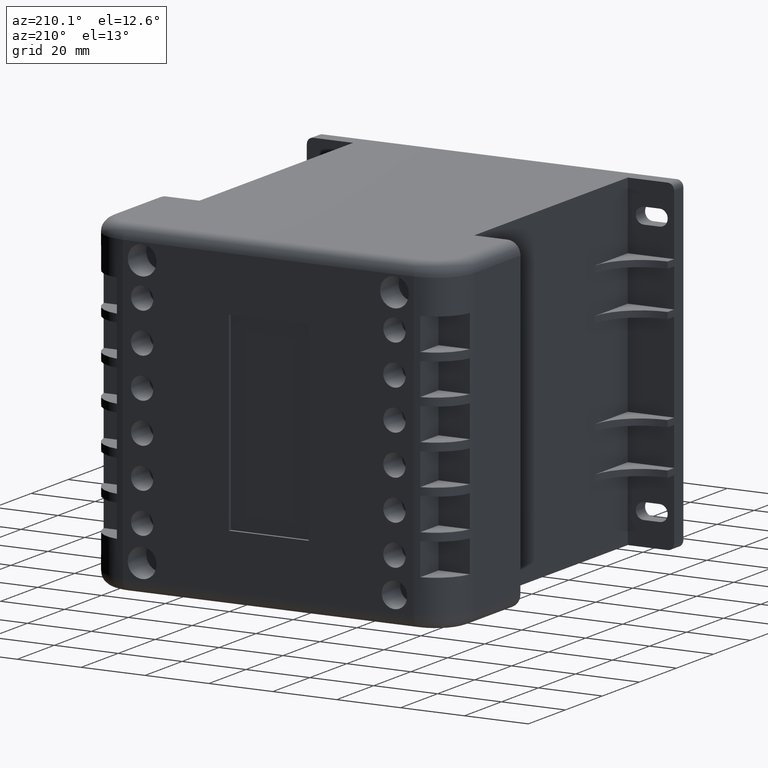
[diagram: clean part render]
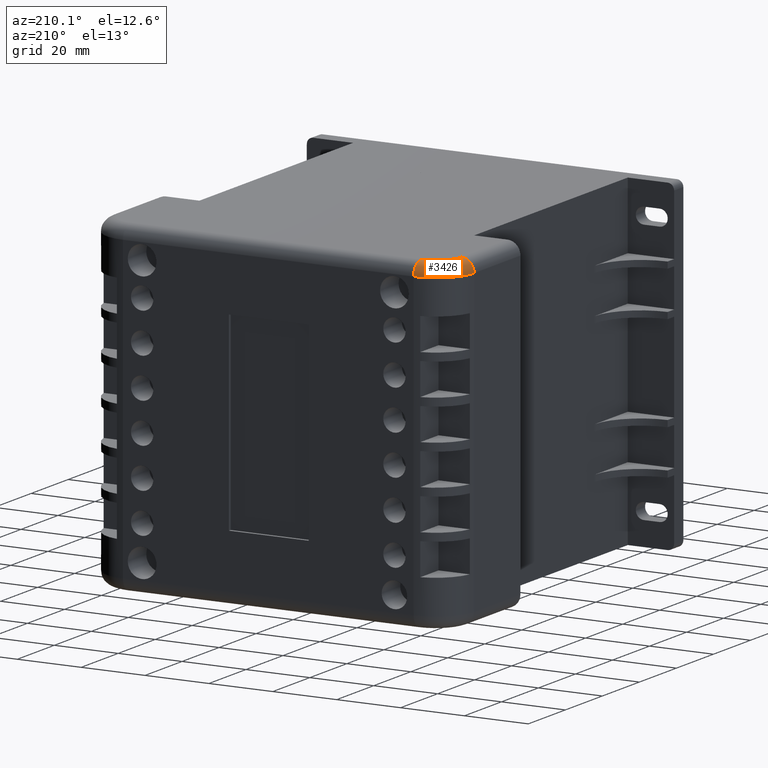
[diagram: same view with one face highlighted and labeled with its STEP entity id]
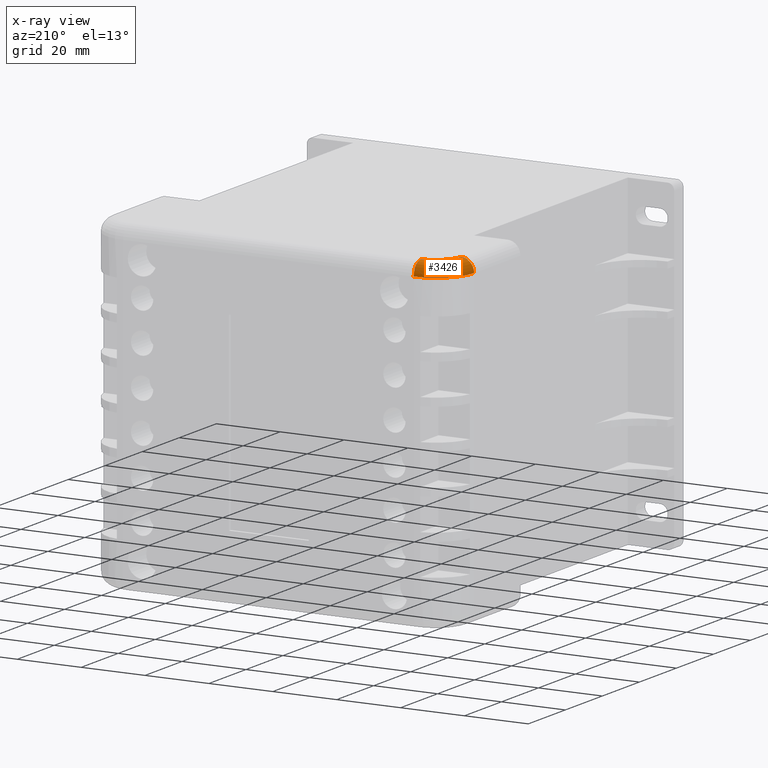
[diagram: x-ray of the same camera — body ghosted, the highlighted face saturated]
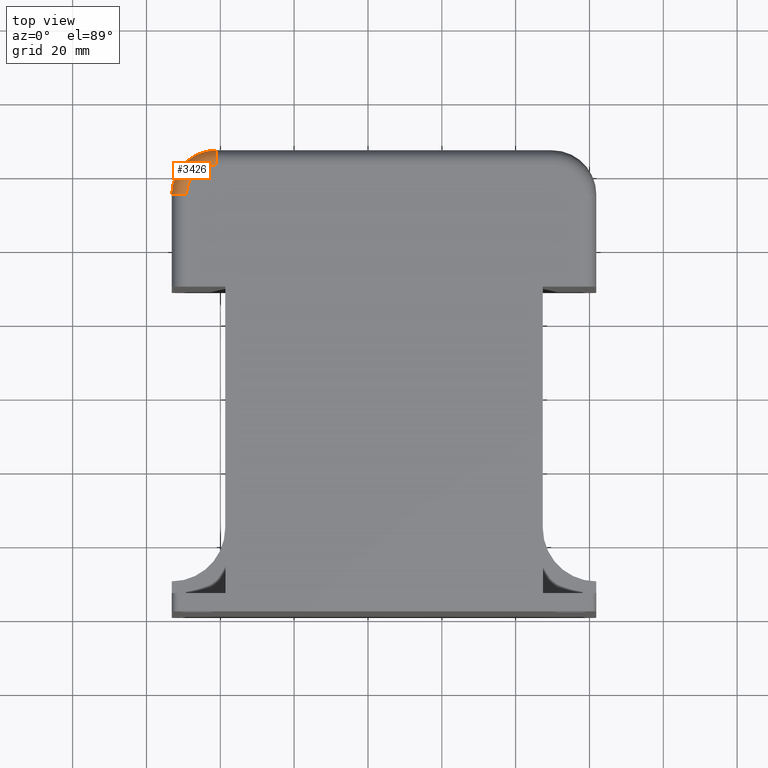
[diagram: same view with one face highlighted and labeled with its STEP entity id]
A machine part, auxiliary view. The second image highlights one B-rep face of the part: STEP entity #3426.
The next image is the same camera in x-ray: the body ghosted, the highlighted face saturated — about 0% of this face is hidden behind the body in this view.
A second angle (top view) of the same face is appended — the face is thin or edge-on in the first view.
In plain terms, the highlighted toroidal blend (fillet) surface has major radius 8 mm and minor (blend) radius 4 mm.
Its self-contained STEP definition (entity closure, byte-faithful):
#25=TOROIDAL_SURFACE('',#3814,8.,4.);
#172=CIRCLE('',#3813,4.);
#173=CIRCLE('',#3815,4.);
#174=CIRCLE('',#3816,12.);
#175=CIRCLE('',#3817,8.);
#387=FACE_OUTER_BOUND('',#598,.T.);
#598=EDGE_LOOP('',(#2642,#2643,#2644,#2645));
#1533=VERTEX_POINT('',#5539);
#1534=VERTEX_POINT('',#5541);
#1535=VERTEX_POINT('',#5545);
#1536=VERTEX_POINT('',#5546);
#1925=EDGE_CURVE('',#1533,#1534,#172,.T.);
#1927=EDGE_CURVE('',#1535,#1536,#173,.T.);
#1928=EDGE_CURVE('',#1536,#1534,#174,.T.);
#1929=EDGE_CURVE('',#1533,#1535,#175,.T.);
#2642=ORIENTED_EDGE('',*,*,#1927,.T.);
#2643=ORIENTED_EDGE('',*,*,#1928,.T.);
#2644=ORIENTED_EDGE('',*,*,#1925,.F.);
#2645=ORIENTED_EDGE('',*,*,#1929,.T.);
#3426=ADVANCED_FACE('',(#387),#25,.T.);
#3813=AXIS2_PLACEMENT_3D('',#5542,#4596,#4597);
#3814=AXIS2_PLACEMENT_3D('',#5544,#4599,#4600);
#3815=AXIS2_PLACEMENT_3D('',#5547,#4601,#4602);
#3816=AXIS2_PLACEMENT_3D('',#5548,#4603,#4604);
#3817=AXIS2_PLACEMENT_3D('',#5549,#4605,#4606);
#4596=DIRECTION('center_axis',(0.,-1.,0.));
#4597=DIRECTION('ref_axis',(0.,0.,1.));
#4599=DIRECTION('center_axis',(0.,0.,-1.));
#4600=DIRECTION('ref_axis',(-1.,0.,0.));
#4601=DIRECTION('center_axis',(-1.,0.,0.));
#4602=DIRECTION('ref_axis',(0.,0.,1.));
#4603=DIRECTION('center_axis',(0.,0.,1.));
#4604=DIRECTION('ref_axis',(-0.707106781186547,0.707106781186548,0.));
#4605=DIRECTION('center_axis',(0.,0.,-1.));
#4606=DIRECTION('ref_axis',(-0.707106781186547,0.707106781186548,0.));
#5539=CARTESIAN_POINT('',(-111.,25.,102.));
#5541=CARTESIAN_POINT('',(-115.,25.,98.));
#5542=CARTESIAN_POINT('Origin',(-111.,25.,98.));
#5544=CARTESIAN_POINT('Origin',(-103.,25.,98.));
#5545=CARTESIAN_POINT('',(-103.,33.,102.));
#5546=CARTESIAN_POINT('',(-103.,37.,98.));
#5547=CARTESIAN_POINT('Origin',(-103.,33.,98.));
#5548=CARTESIAN_POINT('Origin',(-103.,25.,98.));
#5549=CARTESIAN_POINT('Origin',(-103.,25.,102.));